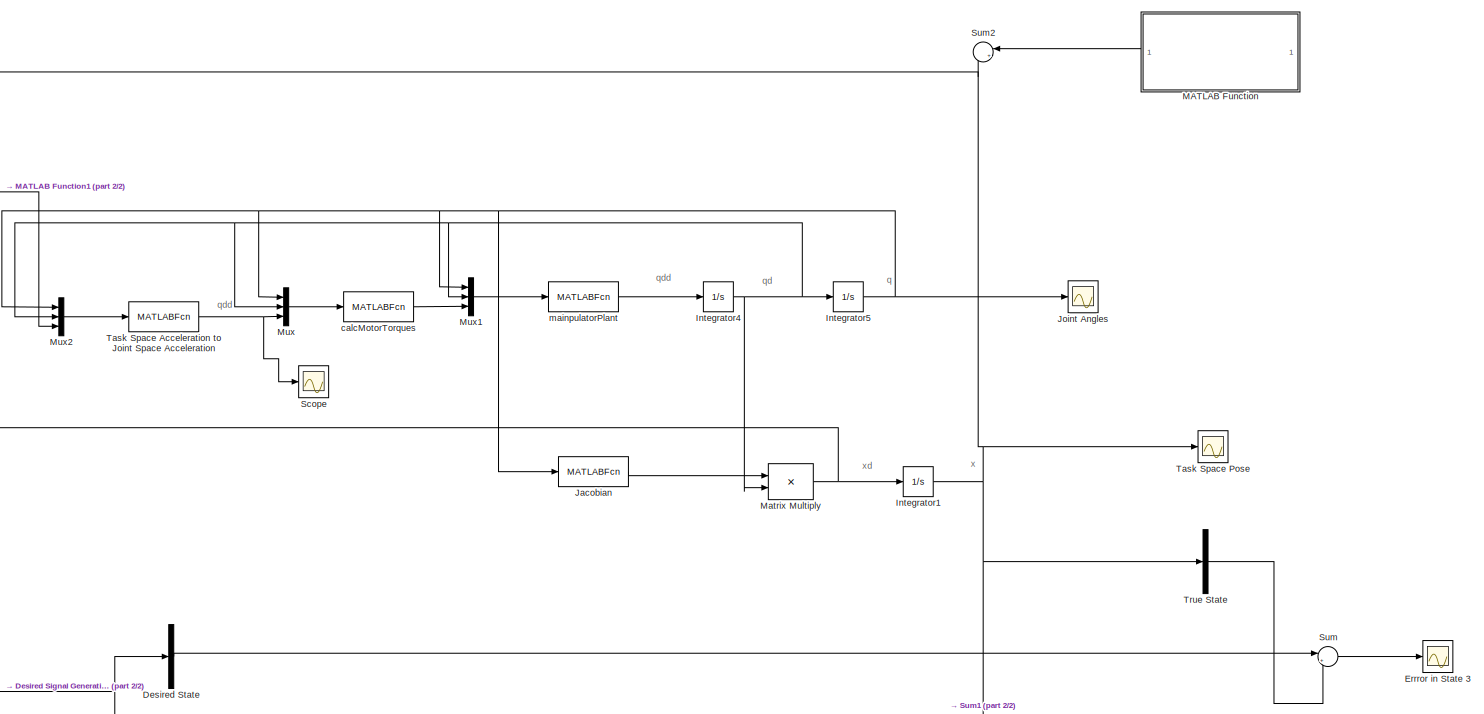
[diagram: root canvas - part 1/2, right side, full height]
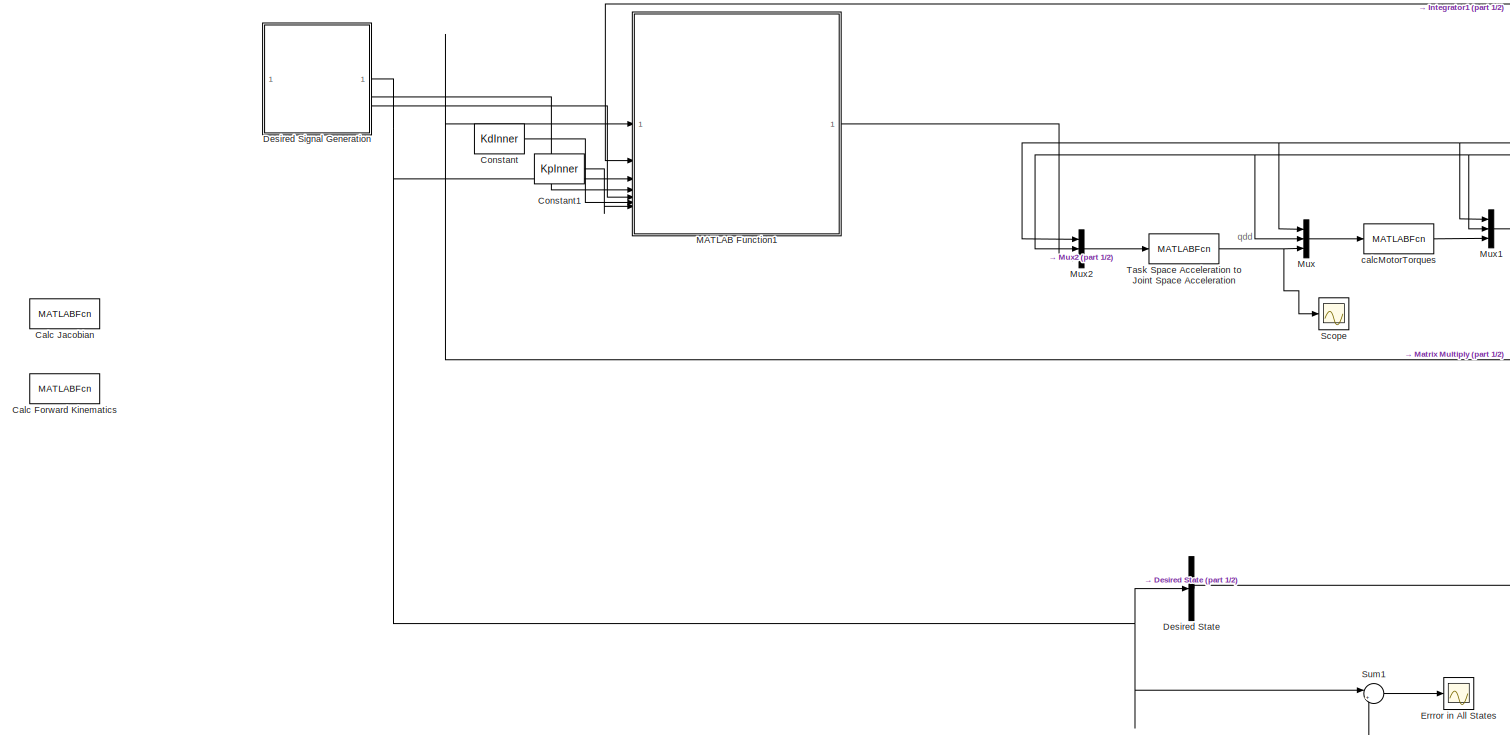
[diagram: root canvas - part 2/2, left side, full height]
MODEL slx_14f0cd86f3e0
KIND model
CONFIG AbsTol = auto
CONFIG EnableMultiTasking = off
CONFIG FixedStep = auto
CONFIG MaxStep = auto
CONFIG MinStep = auto
CONFIG RelTol = 1e-7
CONFIG SampleTimeConstraint = Unconstrained
CONFIG SolverName = ode45
CONFIG StartTime = 0.0
CONFIG StopTime = tSim
BLOCK [MATLABFcn] Calc Forward Kinematics
  Commented = on
  MATLABFcn = AR2FKZYZ
BLOCK [MATLABFcn] Calc Jacobian
  Commented = on
  MATLABFcn = Jacobian0_analytical
BLOCK [Constant] Constant
  Value = KdInner
BLOCK [Constant] Constant1
  Value = KpInner
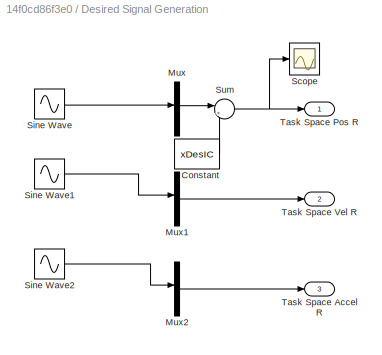
BLOCK [SubSystem] Desired Signal Generation
BLOCK [Constant] Desired Signal Generation/Constant
  Value = xDesIC
BLOCK [Mux] Desired Signal Generation/Mux
  DisplayOption = bar
  Inputs = 6
BLOCK [Mux] Desired Signal Generation/Mux1
  DisplayOption = bar
  Inputs = 6
BLOCK [Mux] Desired Signal Generation/Mux2
  DisplayOption = bar
  Inputs = 6
BLOCK [Scope] Desired Signal Generation/Scope
  Floating = off
  NumInputPorts = 1
  ScopeSpecificationString = Simulink.scopes.TimeScopeBlockCfg('CurrentConfiguration', extmgr.ConfigurationSet(extmgr.Configuration('Core','General UI',true),extmgr.Configuration('Core','Source UI',true),extmgr.Configuration('Sources','WiredSimulink',true,'DataLoggingVariableName','ScopeData2'),extmgr.Configuration('Visuals','Time Domain',true,'SerializedDisplays',{struct('MinYLimReal','-234.4385','MaxYLimReal','375.45454','Y...<+1416ch>
BLOCK [Sin] Desired Signal Generation/Sine Wave
  Amplitude = maxSinAmount
  Frequency = freq
  SampleTime = 0
BLOCK [Sin] Desired Signal Generation/Sine Wave1
  Amplitude = maxSinAmount * (2 * pi / tSim)
  Frequency = freq
  Phase = pi/2
  SampleTime = 0
BLOCK [Sin] Desired Signal Generation/Sine Wave2
  Amplitude = -maxSinAmount * (2 * pi / tSim)^2
  Frequency = freq
  SampleTime = 0
BLOCK [Sum] Desired Signal Generation/Sum
  Inputs = |++
BLOCK [Outport] Desired Signal Generation/Task Space Accel R
  Port = 3
BLOCK [Outport] Desired Signal Generation/Task Space Pos R
BLOCK [Outport] Desired Signal Generation/Task Space Vel R
  Port = 2
BLOCK [Demux] Desired State
  Outputs = [2 1 3]
BLOCK [Scope] Errror in All States
  Floating = off
  NumInputPorts = 1
  ScopeSpecificationString = Simulink.scopes.TimeScopeBlockCfg('CurrentConfiguration', extmgr.ConfigurationSet(extmgr.Configuration('Core','General UI',true),extmgr.Configuration('Core','Source UI',true),extmgr.Configuration('Sources','WiredSimulink',true,'DataLoggingVariableName','ScopeData2'),extmgr.Configuration('Visuals','Time Domain',true,'SerializedDisplays',{struct('MinYLimReal','-5.54212','MaxYLimReal','10.30734','YLa...<+1487ch>
BLOCK [Scope] Errror in State 3
  Floating = off
  NumInputPorts = 1
  ScopeSpecificationString = Simulink.scopes.TimeScopeBlockCfg('CurrentConfiguration', extmgr.ConfigurationSet(extmgr.Configuration('Core','General UI',true),extmgr.Configuration('Core','Source UI',true),extmgr.Configuration('Sources','WiredSimulink',true,'DataLoggingVariableName','ScopeData1'),extmgr.Configuration('Visuals','Time Domain',true,'SerializedDisplays',{struct('MinYLimReal','-5.54212','MaxYLimReal','10.30734','YLa...<+1441ch>
BLOCK [Integrator] Integrator1
  InitialCondition = xIC
BLOCK [Integrator] Integrator4
  InitialCondition = [0 0 0 0 0 0]'
BLOCK [Integrator] Integrator5
  InitialCondition = theta0Per'
BLOCK [MATLABFcn] Jacobian
  MATLABFcn = Jacobian0_analytical(u)
  Output1D = off
BLOCK [Scope] Joint Angles
  Floating = off
  NumInputPorts = 1
  ScopeSpecificationString = Simulink.scopes.TimeScopeBlockCfg('CurrentConfiguration', extmgr.ConfigurationSet(extmgr.Configuration('Core','General UI',true),extmgr.Configuration('Core','Source UI',true),extmgr.Configuration('Sources','WiredSimulink',true,'DataLoggingVariableName','ScopeData1'),extmgr.Configuration('Visuals','Time Domain',true,'SerializedDisplays',{struct('MinYLimReal','-2.48913','MaxYLimReal','3.20355','YLab...<+1706ch>
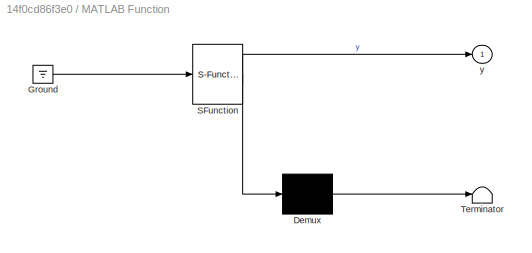
BLOCK [SubSystem] MATLAB Function
  ErrorFcn = Stateflow.Translate.translate
  LibrarySourceBlock = simulink/User-Defined\nFunctions/MATLAB Function
  NameLocation = top
  PermitHierarchicalResolution = ExplicitOnly
  SFBlockType = MATLAB Function
  TreatAsAtomicUnit = on
BLOCK [Demux] MATLAB Function/ Demux 
  Outputs = 1
BLOCK [Ground] MATLAB Function/ Ground 
BLOCK [S-Function] MATLAB Function/ SFunction 
  EnableBusSupport = on
  FunctionName = sf_sfun
  PortCounts = [1 2]
  SFcnIsStateOwnerBlock = off
  SFunctionDeploymentMode = off
  Tag = Stateflow S-Function 2
BLOCK [Terminator] MATLAB Function/ Terminator 
BLOCK [Outport] MATLAB Function/y
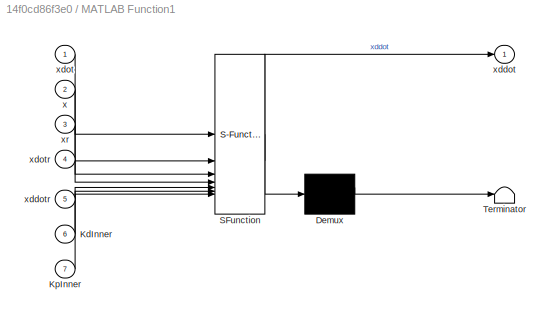
BLOCK [SubSystem] MATLAB Function1
  ErrorFcn = Stateflow.Translate.translate
  LibrarySourceBlock = simulink/User-Defined\nFunctions/MATLAB Function
  PermitHierarchicalResolution = ExplicitOnly
  SFBlockType = MATLAB Function
  TreatAsAtomicUnit = on
BLOCK [Demux] MATLAB Function1/ Demux 
  Outputs = 1
BLOCK [S-Function] MATLAB Function1/ SFunction 
  EnableBusSupport = on
  FunctionName = sf_sfun
  PortCounts = [7 2]
  SFcnIsStateOwnerBlock = off
  SFunctionDeploymentMode = off
  Tag = Stateflow S-Function 1
BLOCK [Terminator] MATLAB Function1/ Terminator 
BLOCK [Inport] MATLAB Function1/KdInner
  Port = 6
BLOCK [Inport] MATLAB Function1/KpInner
  Port = 7
BLOCK [Inport] MATLAB Function1/x
  Port = 2
BLOCK [Outport] MATLAB Function1/xddot
BLOCK [Inport] MATLAB Function1/xddotr
  Port = 5
BLOCK [Inport] MATLAB Function1/xdot
BLOCK [Inport] MATLAB Function1/xdotr
  Port = 4
BLOCK [Inport] MATLAB Function1/xr
  Port = 3
BLOCK [Product] Matrix Multiply
  Multiplication = Matrix(*)
BLOCK [Mux] Mux
  DisplayOption = bar
  Inputs = 3
BLOCK [Mux] Mux1
  DisplayOption = bar
  Inputs = 3
BLOCK [Mux] Mux2
  DisplayOption = bar
  Inputs = 3
BLOCK [Scope] Scope
  Floating = off
  NumInputPorts = 1
  ScopeSpecificationString = Simulink.scopes.TimeScopeBlockCfg('CurrentConfiguration', extmgr.ConfigurationSet(extmgr.Configuration('Core','General UI',true),extmgr.Configuration('Core','Source UI',true),extmgr.Configuration('Sources','WiredSimulink',true,'DataLoggingVariableName','ScopeData1'),extmgr.Configuration('Visuals','Time Domain',true,'SerializedDisplays',{struct('MinYLimReal','-2.16139','MaxYLimReal','2.16104','YLab...<+1698ch>
BLOCK [Sum] Sum
  Inputs = |+-
BLOCK [Sum] Sum1
  Inputs = |+-
BLOCK [Sum] Sum2
  Inputs = |++
  NameLocation = top
BLOCK [MATLABFcn] Task Space Acceleration to Joint Space Acceleration
  MATLABFcn = tAccel2jAccel(u(1:6),u(7:12),u(13:18))
  Output1D = off
BLOCK [Scope] Task Space Pose
  Floating = off
  NumInputPorts = 1
  ScopeSpecificationString = Simulink.scopes.TimeScopeBlockCfg('CurrentConfiguration', extmgr.ConfigurationSet(extmgr.Configuration('Core','General UI',true),extmgr.Configuration('Core','Source UI',true),extmgr.Configuration('Sources','WiredSimulink',true),extmgr.Configuration('Visuals','Time Domain',true,'SerializedDisplays',{struct('MinYLimReal','-237.02616','MaxYLimReal','398.74345','YLabelReal','','MinYLimMag',' 0.00000',...<+1500ch>
BLOCK [Demux] True State
  Outputs = [2 1 3]
BLOCK [MATLABFcn] calcMotorTorques
  MATLABFcn = calcTorques(u,Robot)
  Output1D = off
  OutputDimensions = 6
BLOCK [MATLABFcn] mainpulatorPlant
  MATLABFcn = manipulatorPlant(u,Robot)
ANNOTATION (root): q
ANNOTATION (root): qd
ANNOTATION (root): qdd
ANNOTATION (root): x
ANNOTATION (root): xd
LINE Constant1:1 -> MATLAB Function1:7
LINE Constant:1 -> MATLAB Function1:6
LINE Desired Signal Generation/Constant:1 -> Desired Signal Generation/Sum:2
LINE Desired Signal Generation/Mux1:1 -> Desired Signal Generation/Task Space Vel R:1
LINE Desired Signal Generation/Mux2:1 -> Desired Signal Generation/Task Space Accel R:1
LINE Desired Signal Generation/Mux:1 -> Desired Signal Generation/Sum:1
LINE Desired Signal Generation/Sine Wave1:1 -> Desired Signal Generation/Mux1:3
LINE Desired Signal Generation/Sine Wave2:1 -> Desired Signal Generation/Mux2:3
LINE Desired Signal Generation/Sine Wave:1 -> Desired Signal Generation/Mux:3
NET Desired Signal Generation/Sum:1 -> Desired Signal Generation/Scope:1, Desired Signal Generation/Task Space Pos R:1
NET Desired Signal Generation:1 -> Desired State:1, MATLAB Function1:3, Sum1:1
LINE Desired Signal Generation:2 -> MATLAB Function1:4
LINE Desired Signal Generation:3 -> MATLAB Function1:5
LINE Desired State:2 -> Sum:1
NET Integrator1:1 -> MATLAB Function1:2, Sum1:2, Sum2:2, Task Space Pose:1, True State:1
NET Integrator4:1 -> Integrator5:1, Matrix Multiply:2, Mux1:2, Mux2:2, Mux:2
NET Integrator5:1 -> Jacobian:1, Joint Angles:1, Mux1:1, Mux2:1, Mux:1
LINE Jacobian:1 -> Matrix Multiply:1
LINE MATLAB Function1:1 -> Mux2:3
LINE MATLAB Function:1 -> Sum2:1
NET Matrix Multiply:1 -> Integrator1:1, MATLAB Function1:1
LINE Mux1:1 -> mainpulatorPlant:1
LINE Mux2:1 -> Task Space Acceleration to Joint Space Acceleration:1
LINE Mux:1 -> calcMotorTorques:1
LINE Sum1:1 -> Errror in All States:1
LINE Sum:1 -> Errror in State 3:1
NET Task Space Acceleration to Joint Space Acceleration:1 -> Mux:3, Scope:1
LINE True State:2 -> Sum:2
LINE calcMotorTorques:1 -> Mux1:3
LINE mainpulatorPlant:1 -> Integrator4:1
note: NET lines group one-source signal fan-out (src -> all destinations, sorted); 1:1 wires keep LINE
CHART MATLAB Function1 states=1 transitions=1
  STATE_LABEL 'eML_blk_kernel()'
  STATE_LABEL 'SCRIPT:\nfunction xddot = calcTaskSpaceAccelerationController(xdot,x,xr,xdotr,xddotr,KdInner,KpInner)\n\nxddot = (xddotr - KdInner * (xdot-xdotr) - KpInner * (x - xr));  \n'
CHART MATLAB Function states=1 transitions=1
  STATE_LABEL 'eML_blk_kernel()'
  STATE_LABEL 'SCRIPT:\nfunction y = gaussianWhiteNoiseGen()\n\ny = wgn(6,1,-10);'
CHART  states=0 transitions=0
CHART  states=0 transitions=0
